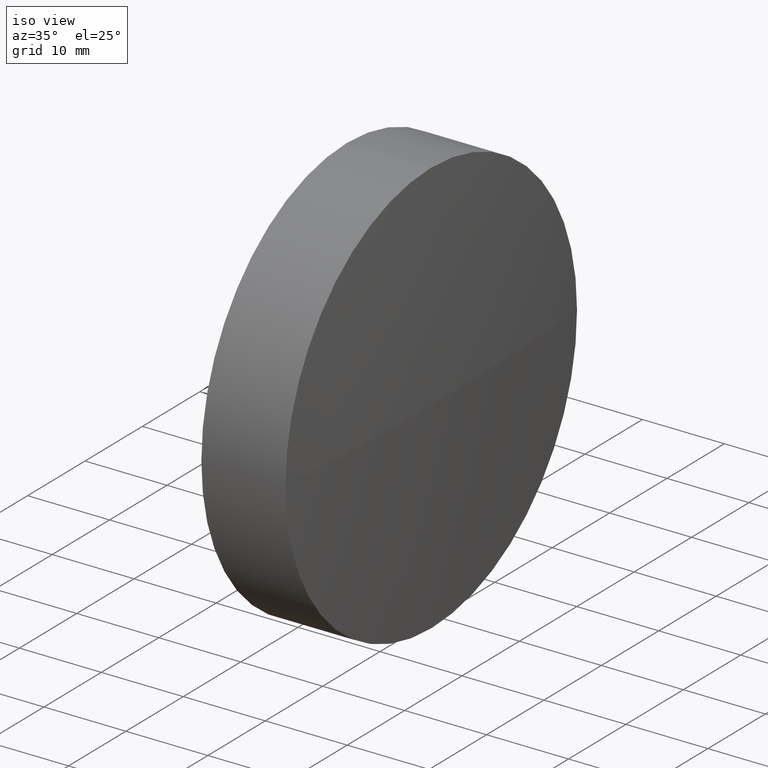
[diagram: clean part render]
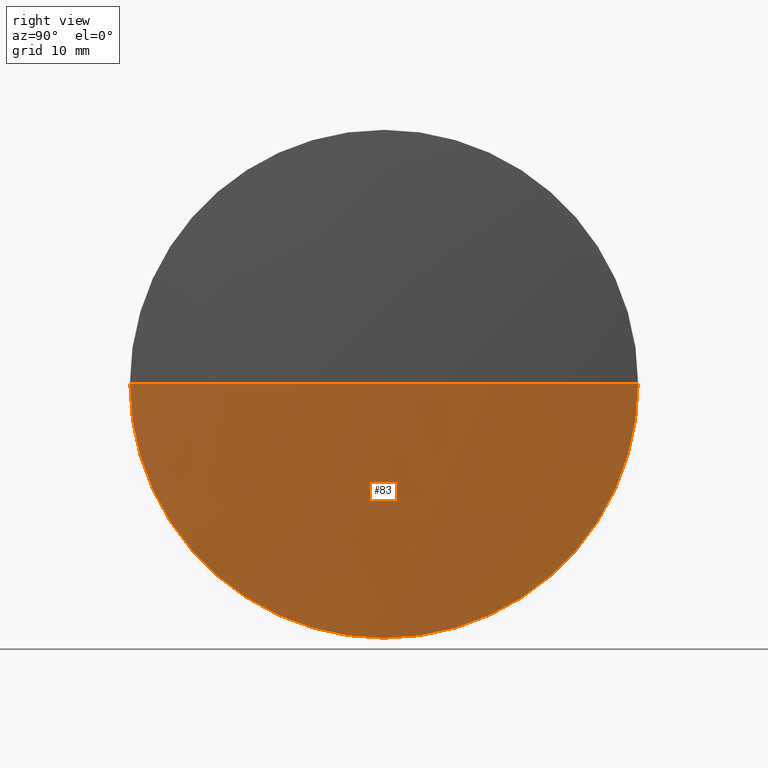
[diagram: tour spotlight — one face highlighted and labeled with its STEP entity id]
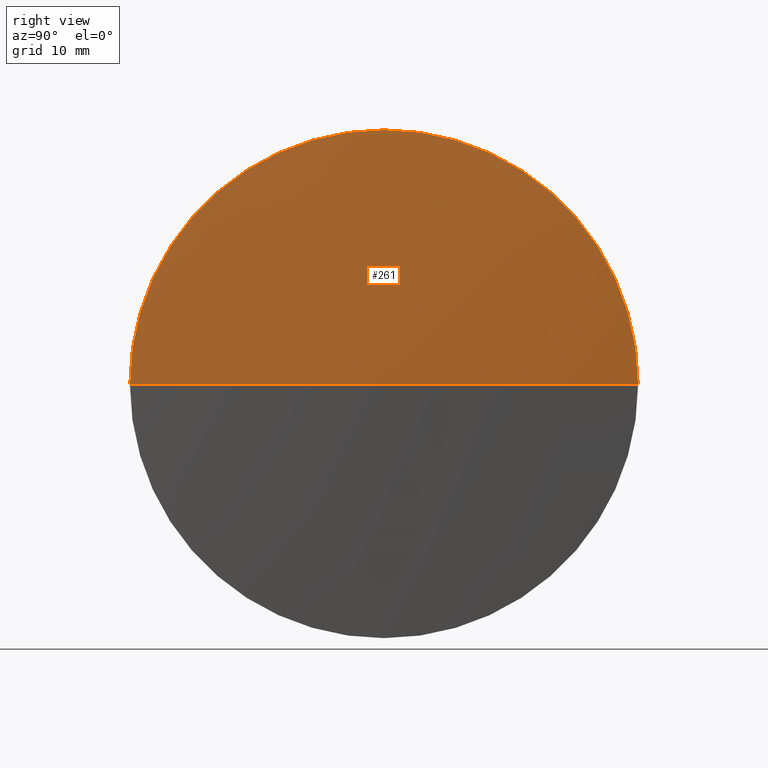
[diagram: tour spotlight — one face highlighted and labeled with its STEP entity id]
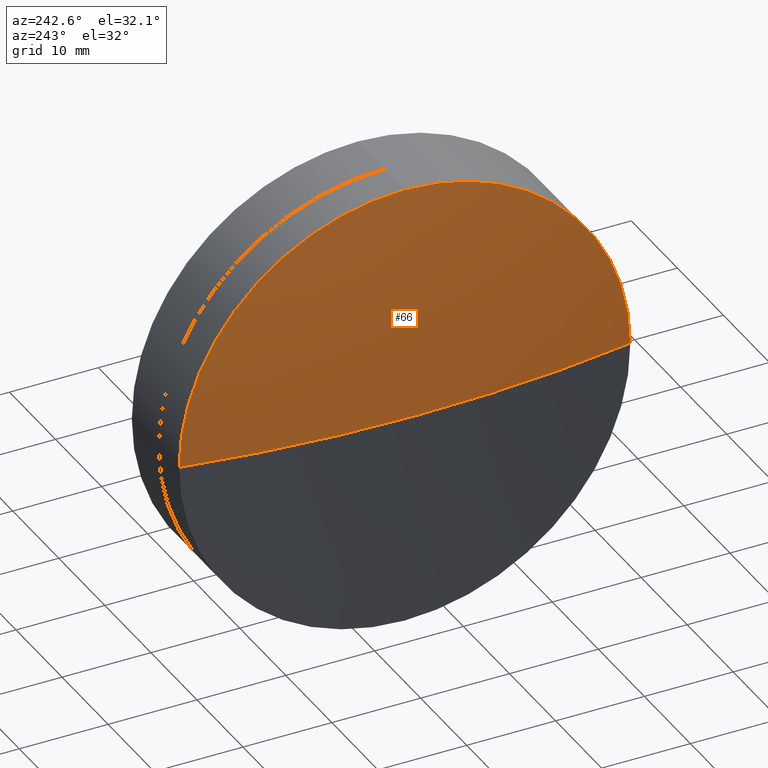
[diagram: tour spotlight — one face highlighted and labeled with its STEP entity id]
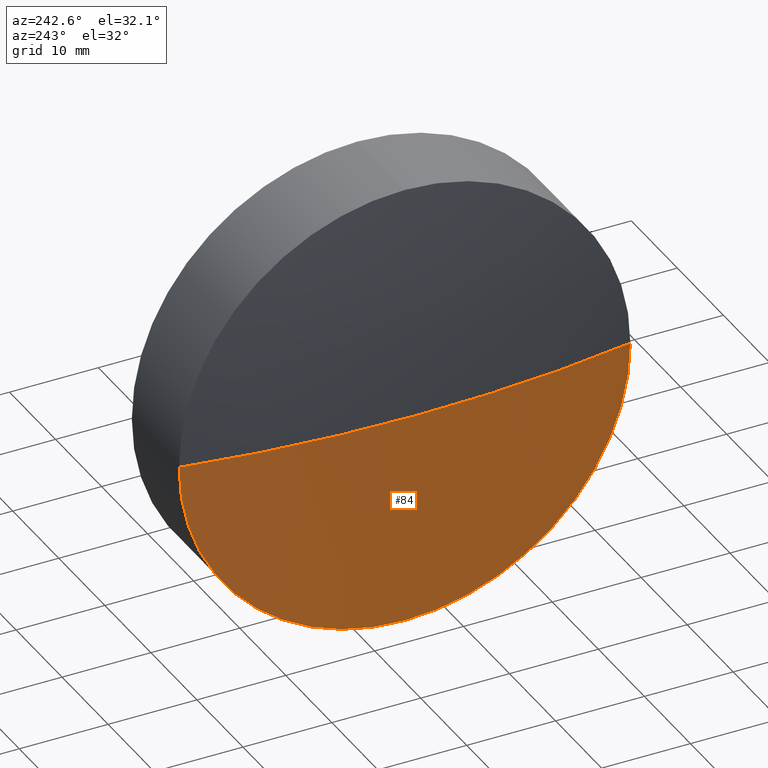
[diagram: tour spotlight — one face highlighted and labeled with its STEP entity id]
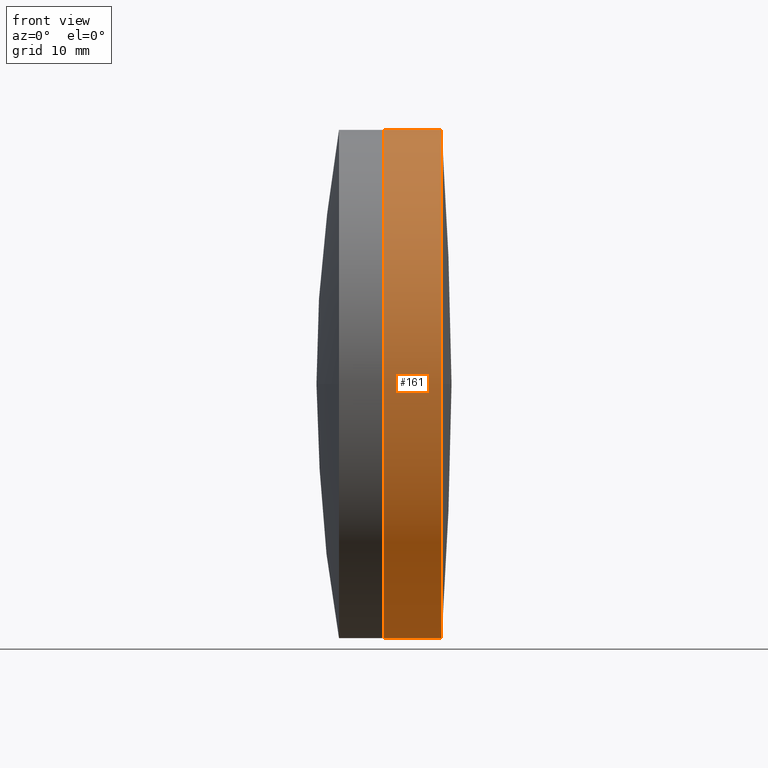
[diagram: tour spotlight — one face highlighted and labeled with its STEP entity id]
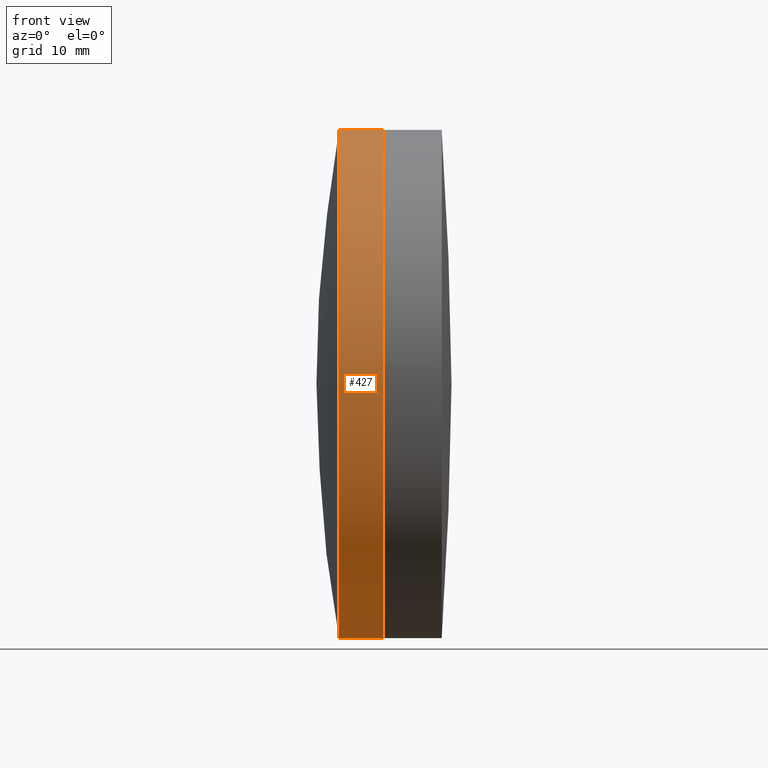
[diagram: tour spotlight — one face highlighted and labeled with its STEP entity id]
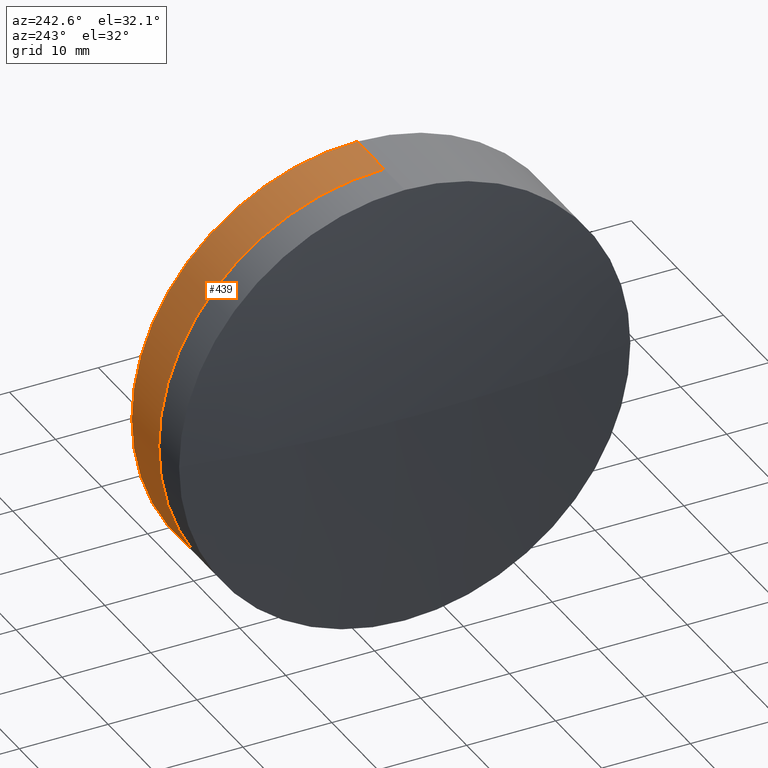
[diagram: tour spotlight — one face highlighted and labeled with its STEP entity id]
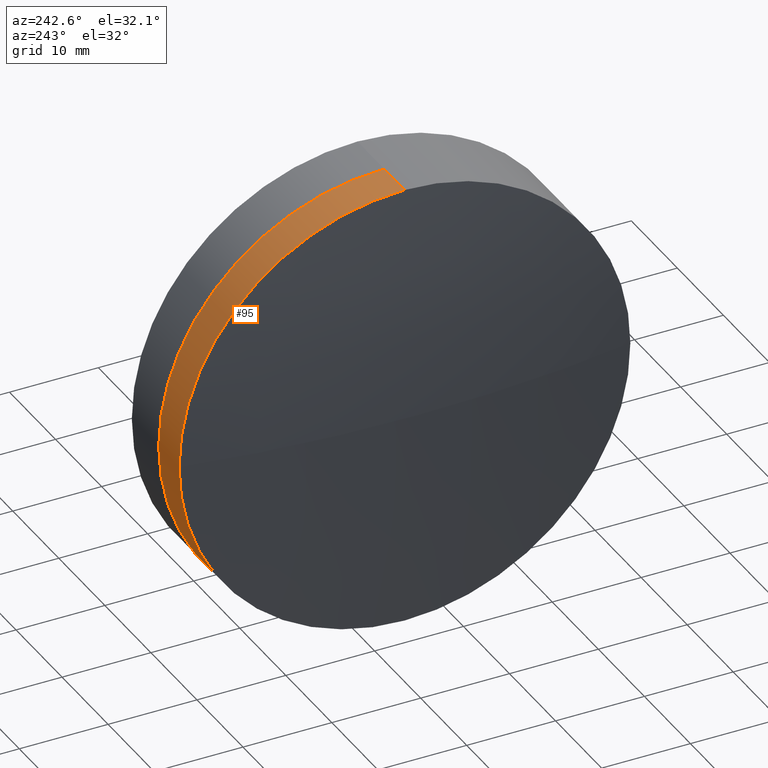
[diagram: tour spotlight — one face highlighted and labeled with its STEP entity id]
A machine part: a face-by-face anatomy tour. The part has 12 B-rep faces; the first image is the clean iso view, then the 8 largest visible faces are spotlighted one at a time (largest first), each with its STEP entity span.

Face 1 — right view, entity #83. In plain terms, the highlighted spherical surface has radius 328.2 mm.
Definition (entity closure, byte-faithful):
#6 = VERTEX_POINT ( 'NONE', #61 ) ;
#9 = DIRECTION ( 'NONE',  ( 0.000000000000000000, 1.224646799147353207E-16, -1.000000000000000000 ) ) ;
#26 = AXIS2_PLACEMENT_3D ( 'NONE', #45, #85, #42 ) ;
#27 = DIRECTION ( 'NONE',  ( -1.000000000000000000, -0.000000000000000000, -0.000000000000000000 ) ) ;
#30 = DIRECTION ( 'NONE',  ( 1.000000000000000000, 0.000000000000000000, 0.000000000000000000 ) ) ;
#40 = VERTEX_POINT ( 'NONE', #179 ) ;
#42 = DIRECTION ( 'NONE',  ( 0.000000000000000000, 1.000000000000000000, 0.000000000000000000 ) ) ;
#45 = CARTESIAN_POINT ( 'NONE',  ( -394.8209020964605429, 25.50979534552412531, 0.000000000000000000 ) ) ;
#47 = CIRCLE ( 'NONE', #288, 25.39999999999999858 ) ;
#51 = SPHERICAL_SURFACE ( 'NONE', #26, 328.1999999999999886 ) ;
#58 = EDGE_CURVE ( 'NONE', #40, #6, #373, .T. ) ;
#61 = CARTESIAN_POINT ( 'NONE',  ( -67.60525454885318197, 0.1097953455242040716, -3.110602869834267399E-15 ) ) ;
#71 = DIRECTION ( 'NONE',  ( 0.000000000000000000, 0.000000000000000000, 1.000000000000000000 ) ) ;
#83 = ADVANCED_FACE ( 'NONE', ( #141 ), #51, .T. ) ;
#85 = DIRECTION ( 'NONE',  ( -0.000000000000000000, 0.000000000000000000, -1.000000000000000000 ) ) ;
#100 = ORIENTED_EDGE ( 'NONE', *, *, #357, .F. ) ;
#136 = CARTESIAN_POINT ( 'NONE',  ( -67.60525454885318197, 25.50979534552412531, 0.000000000000000000 ) ) ;
#141 = FACE_OUTER_BOUND ( 'NONE', #406, .T. ) ;
#146 = EDGE_CURVE ( 'NONE', #419, #6, #47, .T. ) ;
#172 = CARTESIAN_POINT ( 'NONE',  ( -67.60525454885318197, 25.50979534552412886, -25.39999999999999858 ) ) ;
#179 = CARTESIAN_POINT ( 'NONE',  ( -66.62090209646054006, 25.50979534552414663, 0.000000000000000000 ) ) ;
#200 = DIRECTION ( 'NONE',  ( -1.000000000000000000, -0.000000000000000000, -0.000000000000000000 ) ) ;
#206 = ORIENTED_EDGE ( 'NONE', *, *, #298, .F. ) ;
#208 = CIRCLE ( 'NONE', #407, 25.39999999999999858 ) ;
#223 = CARTESIAN_POINT ( 'NONE',  ( -394.8209020964605429, 25.50979534552412531, 0.000000000000000000 ) ) ;
#230 = VERTEX_POINT ( 'NONE', #369 ) ;
#248 = CARTESIAN_POINT ( 'NONE',  ( -67.60525454885318197, 25.50979534552412531, 0.000000000000000000 ) ) ;
#288 = AXIS2_PLACEMENT_3D ( 'NONE', #248, #27, #403 ) ;
#298 = EDGE_CURVE ( 'NONE', #40, #230, #322, .T. ) ;
#322 = CIRCLE ( 'NONE', #366, 328.1999999999999886 ) ;
#329 = DIRECTION ( 'NONE',  ( -0.000000000000000000, 0.000000000000000000, 1.000000000000000000 ) ) ;
#331 = CARTESIAN_POINT ( 'NONE',  ( -394.8209020964605429, 25.50979534552412531, 0.000000000000000000 ) ) ;
#344 = ORIENTED_EDGE ( 'NONE', *, *, #58, .T. ) ;
#352 = DIRECTION ( 'NONE',  ( 0.000000000000000000, 1.000000000000000000, 1.224646799147353207E-16 ) ) ;
#354 = AXIS2_PLACEMENT_3D ( 'NONE', #223, #9, #352 ) ;
#357 = EDGE_CURVE ( 'NONE', #230, #419, #208, .T. ) ;
#366 = AXIS2_PLACEMENT_3D ( 'NONE', #331, #329, #30 ) ;
#369 = CARTESIAN_POINT ( 'NONE',  ( -67.60525454885318197, 50.90979534552404573, 0.000000000000000000 ) ) ;
#373 = CIRCLE ( 'NONE', #354, 328.1999999999999886 ) ;
#403 = DIRECTION ( 'NONE',  ( 0.000000000000000000, 0.000000000000000000, 1.000000000000000000 ) ) ;
#406 = EDGE_LOOP ( 'NONE', ( #206, #344, #409, #100 ) ) ;
#407 = AXIS2_PLACEMENT_3D ( 'NONE', #136, #200, #71 ) ;
#409 = ORIENTED_EDGE ( 'NONE', *, *, #146, .F. ) ;
#419 = VERTEX_POINT ( 'NONE', #172 ) ;

Face 2 — right view, entity #261. In plain terms, the highlighted spherical surface has radius 328.2 mm.
Definition (entity closure, byte-faithful):
#2 = CARTESIAN_POINT ( 'NONE',  ( -67.60525454885318197, 25.50979534552412531, 25.39999999999999858 ) ) ;
#4 = VERTEX_POINT ( 'NONE', #2 ) ;
#5 = DIRECTION ( 'NONE',  ( -1.000000000000000000, -0.000000000000000000, -0.000000000000000000 ) ) ;
#6 = VERTEX_POINT ( 'NONE', #61 ) ;
#9 = DIRECTION ( 'NONE',  ( 0.000000000000000000, 1.224646799147353207E-16, -1.000000000000000000 ) ) ;
#22 = CIRCLE ( 'NONE', #73, 25.39999999999999858 ) ;
#30 = DIRECTION ( 'NONE',  ( 1.000000000000000000, 0.000000000000000000, 0.000000000000000000 ) ) ;
#31 = ORIENTED_EDGE ( 'NONE', *, *, #382, .F. ) ;
#40 = VERTEX_POINT ( 'NONE', #179 ) ;
#56 = CARTESIAN_POINT ( 'NONE',  ( -67.60525454885318197, 25.50979534552412531, 0.000000000000000000 ) ) ;
#57 = ORIENTED_EDGE ( 'NONE', *, *, #212, .F. ) ;
#58 = EDGE_CURVE ( 'NONE', #40, #6, #373, .T. ) ;
#61 = CARTESIAN_POINT ( 'NONE',  ( -67.60525454885318197, 0.1097953455242040716, -3.110602869834267399E-15 ) ) ;
#73 = AXIS2_PLACEMENT_3D ( 'NONE', #310, #5, #423 ) ;
#92 = CARTESIAN_POINT ( 'NONE',  ( -394.8209020964605429, 25.50979534552412531, 0.000000000000000000 ) ) ;
#119 = DIRECTION ( 'NONE',  ( 0.000000000000000000, 1.000000000000000000, 0.000000000000000000 ) ) ;
#120 = DIRECTION ( 'NONE',  ( -0.000000000000000000, 0.000000000000000000, -1.000000000000000000 ) ) ;
#179 = CARTESIAN_POINT ( 'NONE',  ( -66.62090209646054006, 25.50979534552414663, 0.000000000000000000 ) ) ;
#185 = AXIS2_PLACEMENT_3D ( 'NONE', #92, #120, #119 ) ;
#196 = EDGE_LOOP ( 'NONE', ( #279, #332, #31, #57 ) ) ;
#212 = EDGE_CURVE ( 'NONE', #6, #4, #244, .T. ) ;
#214 = AXIS2_PLACEMENT_3D ( 'NONE', #56, #408, #326 ) ;
#223 = CARTESIAN_POINT ( 'NONE',  ( -394.8209020964605429, 25.50979534552412531, 0.000000000000000000 ) ) ;
#230 = VERTEX_POINT ( 'NONE', #369 ) ;
#234 = FACE_OUTER_BOUND ( 'NONE', #196, .T. ) ;
#244 = CIRCLE ( 'NONE', #214, 25.39999999999999858 ) ;
#261 = ADVANCED_FACE ( 'NONE', ( #234 ), #442, .T. ) ;
#279 = ORIENTED_EDGE ( 'NONE', *, *, #58, .F. ) ;
#298 = EDGE_CURVE ( 'NONE', #40, #230, #322, .T. ) ;
#310 = CARTESIAN_POINT ( 'NONE',  ( -67.60525454885318197, 25.50979534552412531, 0.000000000000000000 ) ) ;
#322 = CIRCLE ( 'NONE', #366, 328.1999999999999886 ) ;
#326 = DIRECTION ( 'NONE',  ( 0.000000000000000000, 0.000000000000000000, 1.000000000000000000 ) ) ;
#329 = DIRECTION ( 'NONE',  ( -0.000000000000000000, 0.000000000000000000, 1.000000000000000000 ) ) ;
#331 = CARTESIAN_POINT ( 'NONE',  ( -394.8209020964605429, 25.50979534552412531, 0.000000000000000000 ) ) ;
#332 = ORIENTED_EDGE ( 'NONE', *, *, #298, .T. ) ;
#352 = DIRECTION ( 'NONE',  ( 0.000000000000000000, 1.000000000000000000, 1.224646799147353207E-16 ) ) ;
#354 = AXIS2_PLACEMENT_3D ( 'NONE', #223, #9, #352 ) ;
#366 = AXIS2_PLACEMENT_3D ( 'NONE', #331, #329, #30 ) ;
#369 = CARTESIAN_POINT ( 'NONE',  ( -67.60525454885318197, 50.90979534552404573, 0.000000000000000000 ) ) ;
#373 = CIRCLE ( 'NONE', #354, 328.1999999999999886 ) ;
#382 = EDGE_CURVE ( 'NONE', #4, #230, #22, .T. ) ;
#408 = DIRECTION ( 'NONE',  ( -1.000000000000000000, -0.000000000000000000, -0.000000000000000000 ) ) ;
#423 = DIRECTION ( 'NONE',  ( 0.000000000000000000, 0.000000000000000000, 1.000000000000000000 ) ) ;
#442 = SPHERICAL_SURFACE ( 'NONE', #185, 328.1999999999999886 ) ;

Face 3 — auxiliary view, entity #66. In plain terms, the highlighted spherical surface has radius 144.4 mm.
Definition (entity closure, byte-faithful):
#11 = FACE_OUTER_BOUND ( 'NONE', #240, .T. ) ;
#53 = CARTESIAN_POINT ( 'NONE',  ( -77.86941598246637852, 25.50979534552412531, 0.000000000000000000 ) ) ;
#66 = ADVANCED_FACE ( 'NONE', ( #11 ), #176, .T. ) ;
#69 = ORIENTED_EDGE ( 'NONE', *, *, #103, .T. ) ;
#70 = ORIENTED_EDGE ( 'NONE', *, *, #177, .T. ) ;
#72 = CIRCLE ( 'NONE', #335, 25.39999999999999858 ) ;
#76 = CARTESIAN_POINT ( 'NONE',  ( -77.86941598246637852, 25.50979534552412531, 25.39999999999999858 ) ) ;
#89 = CIRCLE ( 'NONE', #205, 25.39999999999999858 ) ;
#97 = CIRCLE ( 'NONE', #272, 144.4000000000000057 ) ;
#98 = CARTESIAN_POINT ( 'NONE',  ( -77.86941598246637852, 0.1097953455241364173, -3.110602869834276076E-15 ) ) ;
#102 = VERTEX_POINT ( 'NONE', #76 ) ;
#103 = EDGE_CURVE ( 'NONE', #277, #341, #97, .T. ) ;
#114 = DIRECTION ( 'NONE',  ( 1.000000000000000000, 0.000000000000000000, 0.000000000000000000 ) ) ;
#122 = DIRECTION ( 'NONE',  ( 0.000000000000000000, 1.000000000000000000, 1.224646799147353207E-16 ) ) ;
#142 = AXIS2_PLACEMENT_3D ( 'NONE', #438, #263, #122 ) ;
#147 = CARTESIAN_POINT ( 'NONE',  ( 64.27909790353947983, 25.50979534552412531, 0.000000000000000000 ) ) ;
#168 = AXIS2_PLACEMENT_3D ( 'NONE', #147, #347, #319 ) ;
#170 = ORIENTED_EDGE ( 'NONE', *, *, #181, .T. ) ;
#173 = DIRECTION ( 'NONE',  ( -0.000000000000000000, 0.000000000000000000, 1.000000000000000000 ) ) ;
#176 = SPHERICAL_SURFACE ( 'NONE', #168, 144.4000000000000057 ) ;
#177 = EDGE_CURVE ( 'NONE', #102, #277, #89, .T. ) ;
#181 = EDGE_CURVE ( 'NONE', #334, #102, #72, .T. ) ;
#193 = CARTESIAN_POINT ( 'NONE',  ( -77.86941598246637852, 25.50979534552412531, 0.000000000000000000 ) ) ;
#202 = ORIENTED_EDGE ( 'NONE', *, *, #225, .F. ) ;
#205 = AXIS2_PLACEMENT_3D ( 'NONE', #193, #299, #231 ) ;
#225 = EDGE_CURVE ( 'NONE', #334, #341, #362, .T. ) ;
#229 = CARTESIAN_POINT ( 'NONE',  ( -77.86941598246637852, 50.90979534552411678, 0.000000000000000000 ) ) ;
#231 = DIRECTION ( 'NONE',  ( 0.000000000000000000, 0.000000000000000000, 1.000000000000000000 ) ) ;
#240 = EDGE_LOOP ( 'NONE', ( #202, #170, #70, #69 ) ) ;
#263 = DIRECTION ( 'NONE',  ( 0.000000000000000000, 1.224646799147353207E-16, -1.000000000000000000 ) ) ;
#267 = DIRECTION ( 'NONE',  ( -1.000000000000000000, -0.000000000000000000, -0.000000000000000000 ) ) ;
#272 = AXIS2_PLACEMENT_3D ( 'NONE', #363, #173, #114 ) ;
#277 = VERTEX_POINT ( 'NONE', #229 ) ;
#294 = DIRECTION ( 'NONE',  ( 0.000000000000000000, 0.000000000000000000, 1.000000000000000000 ) ) ;
#299 = DIRECTION ( 'NONE',  ( -1.000000000000000000, -0.000000000000000000, -0.000000000000000000 ) ) ;
#319 = DIRECTION ( 'NONE',  ( 0.000000000000000000, 1.000000000000000000, 0.000000000000000000 ) ) ;
#334 = VERTEX_POINT ( 'NONE', #98 ) ;
#335 = AXIS2_PLACEMENT_3D ( 'NONE', #53, #267, #294 ) ;
#340 = CARTESIAN_POINT ( 'NONE',  ( -80.12090209646052585, 25.50979534552413597, 0.000000000000000000 ) ) ;
#341 = VERTEX_POINT ( 'NONE', #340 ) ;
#347 = DIRECTION ( 'NONE',  ( -0.000000000000000000, 0.000000000000000000, -1.000000000000000000 ) ) ;
#362 = CIRCLE ( 'NONE', #142, 144.4000000000000341 ) ;
#363 = CARTESIAN_POINT ( 'NONE',  ( 64.27909790353947983, 25.50979534552412531, 0.000000000000000000 ) ) ;
#438 = CARTESIAN_POINT ( 'NONE',  ( 64.27909790353947983, 25.50979534552412531, 0.000000000000000000 ) ) ;

Face 4 — auxiliary view, entity #84. In plain terms, the highlighted spherical surface has radius 144.4 mm.
Definition (entity closure, byte-faithful):
#60 = ORIENTED_EDGE ( 'NONE', *, *, #103, .F. ) ;
#84 = ADVANCED_FACE ( 'NONE', ( #144 ), #115, .T. ) ;
#90 = CIRCLE ( 'NONE', #374, 25.39999999999999858 ) ;
#97 = CIRCLE ( 'NONE', #272, 144.4000000000000057 ) ;
#98 = CARTESIAN_POINT ( 'NONE',  ( -77.86941598246637852, 0.1097953455241364173, -3.110602869834276076E-15 ) ) ;
#103 = EDGE_CURVE ( 'NONE', #277, #341, #97, .T. ) ;
#104 = ORIENTED_EDGE ( 'NONE', *, *, #305, .T. ) ;
#110 = AXIS2_PLACEMENT_3D ( 'NONE', #410, #302, #189 ) ;
#114 = DIRECTION ( 'NONE',  ( 1.000000000000000000, 0.000000000000000000, 0.000000000000000000 ) ) ;
#115 = SPHERICAL_SURFACE ( 'NONE', #443, 144.4000000000000057 ) ;
#122 = DIRECTION ( 'NONE',  ( 0.000000000000000000, 1.000000000000000000, 1.224646799147353207E-16 ) ) ;
#125 = EDGE_LOOP ( 'NONE', ( #330, #104, #280, #60 ) ) ;
#142 = AXIS2_PLACEMENT_3D ( 'NONE', #438, #263, #122 ) ;
#144 = FACE_OUTER_BOUND ( 'NONE', #125, .T. ) ;
#173 = DIRECTION ( 'NONE',  ( -0.000000000000000000, 0.000000000000000000, 1.000000000000000000 ) ) ;
#188 = CARTESIAN_POINT ( 'NONE',  ( 64.27909790353947983, 25.50979534552412531, 0.000000000000000000 ) ) ;
#189 = DIRECTION ( 'NONE',  ( 0.000000000000000000, 0.000000000000000000, 1.000000000000000000 ) ) ;
#203 = CARTESIAN_POINT ( 'NONE',  ( -77.86941598246637852, 25.50979534552412886, -25.39999999999999858 ) ) ;
#219 = EDGE_CURVE ( 'NONE', #277, #368, #301, .T. ) ;
#225 = EDGE_CURVE ( 'NONE', #334, #341, #362, .T. ) ;
#229 = CARTESIAN_POINT ( 'NONE',  ( -77.86941598246637852, 50.90979534552411678, 0.000000000000000000 ) ) ;
#247 = DIRECTION ( 'NONE',  ( 0.000000000000000000, 1.000000000000000000, 0.000000000000000000 ) ) ;
#263 = DIRECTION ( 'NONE',  ( 0.000000000000000000, 1.224646799147353207E-16, -1.000000000000000000 ) ) ;
#271 = DIRECTION ( 'NONE',  ( 0.000000000000000000, 0.000000000000000000, 1.000000000000000000 ) ) ;
#272 = AXIS2_PLACEMENT_3D ( 'NONE', #363, #173, #114 ) ;
#277 = VERTEX_POINT ( 'NONE', #229 ) ;
#280 = ORIENTED_EDGE ( 'NONE', *, *, #225, .T. ) ;
#301 = CIRCLE ( 'NONE', #110, 25.39999999999999858 ) ;
#302 = DIRECTION ( 'NONE',  ( -1.000000000000000000, -0.000000000000000000, -0.000000000000000000 ) ) ;
#305 = EDGE_CURVE ( 'NONE', #368, #334, #90, .T. ) ;
#317 = DIRECTION ( 'NONE',  ( -0.000000000000000000, 0.000000000000000000, -1.000000000000000000 ) ) ;
#330 = ORIENTED_EDGE ( 'NONE', *, *, #219, .T. ) ;
#334 = VERTEX_POINT ( 'NONE', #98 ) ;
#340 = CARTESIAN_POINT ( 'NONE',  ( -80.12090209646052585, 25.50979534552413597, 0.000000000000000000 ) ) ;
#341 = VERTEX_POINT ( 'NONE', #340 ) ;
#362 = CIRCLE ( 'NONE', #142, 144.4000000000000341 ) ;
#363 = CARTESIAN_POINT ( 'NONE',  ( 64.27909790353947983, 25.50979534552412531, 0.000000000000000000 ) ) ;
#368 = VERTEX_POINT ( 'NONE', #203 ) ;
#374 = AXIS2_PLACEMENT_3D ( 'NONE', #411, #381, #271 ) ;
#381 = DIRECTION ( 'NONE',  ( -1.000000000000000000, -0.000000000000000000, -0.000000000000000000 ) ) ;
#410 = CARTESIAN_POINT ( 'NONE',  ( -77.86941598246637852, 25.50979534552412531, 0.000000000000000000 ) ) ;
#411 = CARTESIAN_POINT ( 'NONE',  ( -77.86941598246637852, 25.50979534552412531, 0.000000000000000000 ) ) ;
#438 = CARTESIAN_POINT ( 'NONE',  ( 64.27909790353947983, 25.50979534552412531, 0.000000000000000000 ) ) ;
#443 = AXIS2_PLACEMENT_3D ( 'NONE', #188, #317, #247 ) ;

Face 5 — front view, entity #161. In plain terms, the highlighted cylindrical surface (partial cylindrical patch) has radius 25.4 mm, axis along (-1, -0, -0).
Definition (entity closure, byte-faithful):
#1 = DIRECTION ( 'NONE',  ( 0.000000000000000000, 0.000000000000000000, 1.000000000000000000 ) ) ;
#2 = CARTESIAN_POINT ( 'NONE',  ( -67.60525454885318197, 25.50979534552412531, 25.39999999999999858 ) ) ;
#4 = VERTEX_POINT ( 'NONE', #2 ) ;
#6 = VERTEX_POINT ( 'NONE', #61 ) ;
#7 = ORIENTED_EDGE ( 'NONE', *, *, #152, .T. ) ;
#10 = VERTEX_POINT ( 'NONE', #96 ) ;
#14 = AXIS2_PLACEMENT_3D ( 'NONE', #336, #101, #1 ) ;
#19 = EDGE_CURVE ( 'NONE', #245, #237, #405, .T. ) ;
#25 = DIRECTION ( 'NONE',  ( -1.000000000000000000, -0.000000000000000000, -0.000000000000000000 ) ) ;
#27 = DIRECTION ( 'NONE',  ( -1.000000000000000000, -0.000000000000000000, -0.000000000000000000 ) ) ;
#32 = FACE_OUTER_BOUND ( 'NONE', #370, .T. ) ;
#47 = CIRCLE ( 'NONE', #288, 25.39999999999999858 ) ;
#54 = CYLINDRICAL_SURFACE ( 'NONE', #82, 25.39999999999999858 ) ;
#56 = CARTESIAN_POINT ( 'NONE',  ( -67.60525454885318197, 25.50979534552412531, 0.000000000000000000 ) ) ;
#59 = CARTESIAN_POINT ( 'NONE',  ( -73.45092386069826773, 25.50979534552412886, -25.39999999999999858 ) ) ;
#61 = CARTESIAN_POINT ( 'NONE',  ( -67.60525454885318197, 0.1097953455242040716, -3.110602869834267399E-15 ) ) ;
#82 = AXIS2_PLACEMENT_3D ( 'NONE', #440, #25, #333 ) ;
#88 = LINE ( 'NONE', #192, #153 ) ;
#94 = CARTESIAN_POINT ( 'NONE',  ( -70.62090209646055428, 25.50979534552412531, 25.39999999999999858 ) ) ;
#96 = CARTESIAN_POINT ( 'NONE',  ( -73.45092386069826773, 25.50979534552412531, 25.39999999999999858 ) ) ;
#101 = DIRECTION ( 'NONE',  ( -1.000000000000000000, -0.000000000000000000, -0.000000000000000000 ) ) ;
#106 = ORIENTED_EDGE ( 'NONE', *, *, #129, .F. ) ;
#126 = CARTESIAN_POINT ( 'NONE',  ( -73.45092386069826773, 0.1097953455240670284, -3.110602869834283965E-15 ) ) ;
#129 = EDGE_CURVE ( 'NONE', #237, #10, #282, .T. ) ;
#146 = EDGE_CURVE ( 'NONE', #419, #6, #47, .T. ) ;
#152 = EDGE_CURVE ( 'NONE', #4, #10, #195, .T. ) ;
#153 = VECTOR ( 'NONE', #158, 1000.000000000000000 ) ;
#158 = DIRECTION ( 'NONE',  ( -1.000000000000000000, -0.000000000000000000, -0.000000000000000000 ) ) ;
#161 = ADVANCED_FACE ( 'NONE', ( #32 ), #54, .T. ) ;
#172 = CARTESIAN_POINT ( 'NONE',  ( -67.60525454885318197, 25.50979534552412886, -25.39999999999999858 ) ) ;
#186 = EDGE_CURVE ( 'NONE', #419, #245, #88, .T. ) ;
#192 = CARTESIAN_POINT ( 'NONE',  ( -70.62090209646055428, 25.50979534552412886, -25.39999999999999858 ) ) ;
#195 = LINE ( 'NONE', #94, #258 ) ;
#212 = EDGE_CURVE ( 'NONE', #6, #4, #244, .T. ) ;
#214 = AXIS2_PLACEMENT_3D ( 'NONE', #56, #408, #326 ) ;
#232 = ORIENTED_EDGE ( 'NONE', *, *, #146, .T. ) ;
#235 = AXIS2_PLACEMENT_3D ( 'NONE', #399, #386, #249 ) ;
#237 = VERTEX_POINT ( 'NONE', #126 ) ;
#244 = CIRCLE ( 'NONE', #214, 25.39999999999999858 ) ;
#245 = VERTEX_POINT ( 'NONE', #59 ) ;
#248 = CARTESIAN_POINT ( 'NONE',  ( -67.60525454885318197, 25.50979534552412531, 0.000000000000000000 ) ) ;
#249 = DIRECTION ( 'NONE',  ( 0.000000000000000000, 0.000000000000000000, 1.000000000000000000 ) ) ;
#258 = VECTOR ( 'NONE', #404, 1000.000000000000000 ) ;
#282 = CIRCLE ( 'NONE', #235, 25.39999999999999858 ) ;
#288 = AXIS2_PLACEMENT_3D ( 'NONE', #248, #27, #403 ) ;
#311 = ORIENTED_EDGE ( 'NONE', *, *, #186, .F. ) ;
#326 = DIRECTION ( 'NONE',  ( 0.000000000000000000, 0.000000000000000000, 1.000000000000000000 ) ) ;
#333 = DIRECTION ( 'NONE',  ( 0.000000000000000000, 0.000000000000000000, 1.000000000000000000 ) ) ;
#336 = CARTESIAN_POINT ( 'NONE',  ( -73.45092386069826773, 25.50979534552412531, 0.000000000000000000 ) ) ;
#370 = EDGE_LOOP ( 'NONE', ( #311, #232, #372, #7, #106, #422 ) ) ;
#372 = ORIENTED_EDGE ( 'NONE', *, *, #212, .T. ) ;
#386 = DIRECTION ( 'NONE',  ( -1.000000000000000000, -0.000000000000000000, -0.000000000000000000 ) ) ;
#399 = CARTESIAN_POINT ( 'NONE',  ( -73.45092386069826773, 25.50979534552412531, 0.000000000000000000 ) ) ;
#403 = DIRECTION ( 'NONE',  ( 0.000000000000000000, 0.000000000000000000, 1.000000000000000000 ) ) ;
#404 = DIRECTION ( 'NONE',  ( -1.000000000000000000, -0.000000000000000000, -0.000000000000000000 ) ) ;
#405 = CIRCLE ( 'NONE', #14, 25.39999999999999858 ) ;
#408 = DIRECTION ( 'NONE',  ( -1.000000000000000000, -0.000000000000000000, -0.000000000000000000 ) ) ;
#419 = VERTEX_POINT ( 'NONE', #172 ) ;
#422 = ORIENTED_EDGE ( 'NONE', *, *, #19, .F. ) ;
#440 = CARTESIAN_POINT ( 'NONE',  ( -70.62090209646055428, 25.50979534552412531, 0.000000000000000000 ) ) ;

Face 6 — front view, entity #427. In plain terms, the highlighted cylindrical surface (partial cylindrical patch) has radius 25.4 mm, axis along (-1, -0, -0).
Definition (entity closure, byte-faithful):
#8 = CARTESIAN_POINT ( 'NONE',  ( -80.12090209646052585, 25.50979534552412531, 0.000000000000000000 ) ) ;
#12 = EDGE_CURVE ( 'NONE', #312, #102, #132, .T. ) ;
#28 = ORIENTED_EDGE ( 'NONE', *, *, #12, .T. ) ;
#35 = CARTESIAN_POINT ( 'NONE',  ( -73.45092386069823931, 25.50979534552412531, 25.39999999999999858 ) ) ;
#36 = VERTEX_POINT ( 'NONE', #286 ) ;
#39 = DIRECTION ( 'NONE',  ( 0.000000000000000000, 0.000000000000000000, 1.000000000000000000 ) ) ;
#41 = CARTESIAN_POINT ( 'NONE',  ( -73.45092386069823931, 25.50979534552412531, 0.000000000000000000 ) ) ;
#53 = CARTESIAN_POINT ( 'NONE',  ( -77.86941598246637852, 25.50979534552412531, 0.000000000000000000 ) ) ;
#68 = DIRECTION ( 'NONE',  ( -1.000000000000000000, -0.000000000000000000, -0.000000000000000000 ) ) ;
#72 = CIRCLE ( 'NONE', #335, 25.39999999999999858 ) ;
#76 = CARTESIAN_POINT ( 'NONE',  ( -77.86941598246637852, 25.50979534552412531, 25.39999999999999858 ) ) ;
#90 = CIRCLE ( 'NONE', #374, 25.39999999999999858 ) ;
#91 = EDGE_LOOP ( 'NONE', ( #274, #171, #137, #28, #308, #376 ) ) ;
#98 = CARTESIAN_POINT ( 'NONE',  ( -77.86941598246637852, 0.1097953455241364173, -3.110602869834276076E-15 ) ) ;
#102 = VERTEX_POINT ( 'NONE', #76 ) ;
#109 = EDGE_CURVE ( 'NONE', #36, #368, #424, .T. ) ;
#130 = CARTESIAN_POINT ( 'NONE',  ( -80.12090209646052585, 25.50979534552412531, 25.39999999999999858 ) ) ;
#131 = DIRECTION ( 'NONE',  ( 0.000000000000000000, 0.000000000000000000, 1.000000000000000000 ) ) ;
#132 = LINE ( 'NONE', #130, #383 ) ;
#137 = ORIENTED_EDGE ( 'NONE', *, *, #338, .T. ) ;
#163 = CARTESIAN_POINT ( 'NONE',  ( -73.45092386069823931, 25.50979534552412531, 0.000000000000000000 ) ) ;
#169 = DIRECTION ( 'NONE',  ( -1.000000000000000000, -0.000000000000000000, -0.000000000000000000 ) ) ;
#171 = ORIENTED_EDGE ( 'NONE', *, *, #388, .T. ) ;
#181 = EDGE_CURVE ( 'NONE', #334, #102, #72, .T. ) ;
#190 = VECTOR ( 'NONE', #325, 1000.000000000000000 ) ;
#203 = CARTESIAN_POINT ( 'NONE',  ( -77.86941598246637852, 25.50979534552412886, -25.39999999999999858 ) ) ;
#210 = CARTESIAN_POINT ( 'NONE',  ( -80.12090209646052585, 25.50979534552412886, -25.39999999999999858 ) ) ;
#222 = CIRCLE ( 'NONE', #355, 25.39999999999999858 ) ;
#242 = VERTEX_POINT ( 'NONE', #447 ) ;
#243 = DIRECTION ( 'NONE',  ( 0.000000000000000000, 0.000000000000000000, 1.000000000000000000 ) ) ;
#267 = DIRECTION ( 'NONE',  ( -1.000000000000000000, -0.000000000000000000, -0.000000000000000000 ) ) ;
#271 = DIRECTION ( 'NONE',  ( 0.000000000000000000, 0.000000000000000000, 1.000000000000000000 ) ) ;
#274 = ORIENTED_EDGE ( 'NONE', *, *, #109, .F. ) ;
#275 = DIRECTION ( 'NONE',  ( -1.000000000000000000, -0.000000000000000000, -0.000000000000000000 ) ) ;
#278 = CYLINDRICAL_SURFACE ( 'NONE', #444, 25.39999999999999858 ) ;
#286 = CARTESIAN_POINT ( 'NONE',  ( -73.45092386069823931, 25.50979534552412886, -25.39999999999999858 ) ) ;
#294 = DIRECTION ( 'NONE',  ( 0.000000000000000000, 0.000000000000000000, 1.000000000000000000 ) ) ;
#305 = EDGE_CURVE ( 'NONE', #368, #334, #90, .T. ) ;
#308 = ORIENTED_EDGE ( 'NONE', *, *, #181, .F. ) ;
#309 = AXIS2_PLACEMENT_3D ( 'NONE', #163, #68, #39 ) ;
#312 = VERTEX_POINT ( 'NONE', #35 ) ;
#313 = FACE_OUTER_BOUND ( 'NONE', #91, .T. ) ;
#325 = DIRECTION ( 'NONE',  ( -1.000000000000000000, -0.000000000000000000, -0.000000000000000000 ) ) ;
#334 = VERTEX_POINT ( 'NONE', #98 ) ;
#335 = AXIS2_PLACEMENT_3D ( 'NONE', #53, #267, #294 ) ;
#338 = EDGE_CURVE ( 'NONE', #242, #312, #222, .T. ) ;
#355 = AXIS2_PLACEMENT_3D ( 'NONE', #41, #169, #243 ) ;
#368 = VERTEX_POINT ( 'NONE', #203 ) ;
#374 = AXIS2_PLACEMENT_3D ( 'NONE', #411, #381, #271 ) ;
#376 = ORIENTED_EDGE ( 'NONE', *, *, #305, .F. ) ;
#381 = DIRECTION ( 'NONE',  ( -1.000000000000000000, -0.000000000000000000, -0.000000000000000000 ) ) ;
#383 = VECTOR ( 'NONE', #416, 1000.000000000000000 ) ;
#388 = EDGE_CURVE ( 'NONE', #36, #242, #433, .T. ) ;
#411 = CARTESIAN_POINT ( 'NONE',  ( -77.86941598246637852, 25.50979534552412531, 0.000000000000000000 ) ) ;
#416 = DIRECTION ( 'NONE',  ( -1.000000000000000000, -0.000000000000000000, -0.000000000000000000 ) ) ;
#424 = LINE ( 'NONE', #210, #190 ) ;
#427 = ADVANCED_FACE ( 'NONE', ( #313 ), #278, .T. ) ;
#433 = CIRCLE ( 'NONE', #309, 25.39999999999999858 ) ;
#444 = AXIS2_PLACEMENT_3D ( 'NONE', #8, #275, #131 ) ;
#447 = CARTESIAN_POINT ( 'NONE',  ( -73.45092386069823931, 0.1097953455241364173, -3.110602869834275682E-15 ) ) ;

Face 7 — auxiliary view, entity #439. In plain terms, the highlighted cylindrical surface (partial cylindrical patch) has radius 25.4 mm, axis along (-1, -0, -0).
Definition (entity closure, byte-faithful):
#2 = CARTESIAN_POINT ( 'NONE',  ( -67.60525454885318197, 25.50979534552412531, 25.39999999999999858 ) ) ;
#3 = AXIS2_PLACEMENT_3D ( 'NONE', #389, #215, #74 ) ;
#4 = VERTEX_POINT ( 'NONE', #2 ) ;
#5 = DIRECTION ( 'NONE',  ( -1.000000000000000000, -0.000000000000000000, -0.000000000000000000 ) ) ;
#10 = VERTEX_POINT ( 'NONE', #96 ) ;
#13 = EDGE_CURVE ( 'NONE', #297, #245, #123, .T. ) ;
#22 = CIRCLE ( 'NONE', #73, 25.39999999999999858 ) ;
#43 = ORIENTED_EDGE ( 'NONE', *, *, #13, .F. ) ;
#59 = CARTESIAN_POINT ( 'NONE',  ( -73.45092386069826773, 25.50979534552412886, -25.39999999999999858 ) ) ;
#71 = DIRECTION ( 'NONE',  ( 0.000000000000000000, 0.000000000000000000, 1.000000000000000000 ) ) ;
#73 = AXIS2_PLACEMENT_3D ( 'NONE', #310, #5, #423 ) ;
#74 = DIRECTION ( 'NONE',  ( 0.000000000000000000, 0.000000000000000000, 1.000000000000000000 ) ) ;
#88 = LINE ( 'NONE', #192, #153 ) ;
#94 = CARTESIAN_POINT ( 'NONE',  ( -70.62090209646055428, 25.50979534552412531, 25.39999999999999858 ) ) ;
#96 = CARTESIAN_POINT ( 'NONE',  ( -73.45092386069826773, 25.50979534552412531, 25.39999999999999858 ) ) ;
#123 = CIRCLE ( 'NONE', #183, 25.39999999999999858 ) ;
#134 = EDGE_CURVE ( 'NONE', #10, #297, #227, .T. ) ;
#136 = CARTESIAN_POINT ( 'NONE',  ( -67.60525454885318197, 25.50979534552412531, 0.000000000000000000 ) ) ;
#139 = ORIENTED_EDGE ( 'NONE', *, *, #382, .T. ) ;
#140 = FACE_OUTER_BOUND ( 'NONE', #445, .T. ) ;
#152 = EDGE_CURVE ( 'NONE', #4, #10, #195, .T. ) ;
#153 = VECTOR ( 'NONE', #158, 1000.000000000000000 ) ;
#157 = ORIENTED_EDGE ( 'NONE', *, *, #186, .T. ) ;
#158 = DIRECTION ( 'NONE',  ( -1.000000000000000000, -0.000000000000000000, -0.000000000000000000 ) ) ;
#162 = CARTESIAN_POINT ( 'NONE',  ( -73.45092386069826773, 25.50979534552412531, 0.000000000000000000 ) ) ;
#164 = ORIENTED_EDGE ( 'NONE', *, *, #152, .F. ) ;
#172 = CARTESIAN_POINT ( 'NONE',  ( -67.60525454885318197, 25.50979534552412886, -25.39999999999999858 ) ) ;
#183 = AXIS2_PLACEMENT_3D ( 'NONE', #162, #378, #199 ) ;
#186 = EDGE_CURVE ( 'NONE', #419, #245, #88, .T. ) ;
#192 = CARTESIAN_POINT ( 'NONE',  ( -70.62090209646055428, 25.50979534552412886, -25.39999999999999858 ) ) ;
#195 = LINE ( 'NONE', #94, #258 ) ;
#199 = DIRECTION ( 'NONE',  ( 0.000000000000000000, 0.000000000000000000, 1.000000000000000000 ) ) ;
#200 = DIRECTION ( 'NONE',  ( -1.000000000000000000, -0.000000000000000000, -0.000000000000000000 ) ) ;
#204 = ORIENTED_EDGE ( 'NONE', *, *, #357, .T. ) ;
#208 = CIRCLE ( 'NONE', #407, 25.39999999999999858 ) ;
#215 = DIRECTION ( 'NONE',  ( -1.000000000000000000, -0.000000000000000000, -0.000000000000000000 ) ) ;
#227 = CIRCLE ( 'NONE', #3, 25.39999999999999858 ) ;
#228 = AXIS2_PLACEMENT_3D ( 'NONE', #246, #417, #307 ) ;
#230 = VERTEX_POINT ( 'NONE', #369 ) ;
#245 = VERTEX_POINT ( 'NONE', #59 ) ;
#246 = CARTESIAN_POINT ( 'NONE',  ( -70.62090209646055428, 25.50979534552412531, 0.000000000000000000 ) ) ;
#258 = VECTOR ( 'NONE', #404, 1000.000000000000000 ) ;
#281 = CYLINDRICAL_SURFACE ( 'NONE', #228, 25.39999999999999858 ) ;
#297 = VERTEX_POINT ( 'NONE', #364 ) ;
#303 = ORIENTED_EDGE ( 'NONE', *, *, #134, .F. ) ;
#307 = DIRECTION ( 'NONE',  ( 0.000000000000000000, 0.000000000000000000, 1.000000000000000000 ) ) ;
#310 = CARTESIAN_POINT ( 'NONE',  ( -67.60525454885318197, 25.50979534552412531, 0.000000000000000000 ) ) ;
#357 = EDGE_CURVE ( 'NONE', #230, #419, #208, .T. ) ;
#364 = CARTESIAN_POINT ( 'NONE',  ( -73.45092386069826773, 50.90979534552418784, 0.000000000000000000 ) ) ;
#369 = CARTESIAN_POINT ( 'NONE',  ( -67.60525454885318197, 50.90979534552404573, 0.000000000000000000 ) ) ;
#378 = DIRECTION ( 'NONE',  ( -1.000000000000000000, -0.000000000000000000, -0.000000000000000000 ) ) ;
#382 = EDGE_CURVE ( 'NONE', #4, #230, #22, .T. ) ;
#389 = CARTESIAN_POINT ( 'NONE',  ( -73.45092386069826773, 25.50979534552412531, 0.000000000000000000 ) ) ;
#404 = DIRECTION ( 'NONE',  ( -1.000000000000000000, -0.000000000000000000, -0.000000000000000000 ) ) ;
#407 = AXIS2_PLACEMENT_3D ( 'NONE', #136, #200, #71 ) ;
#417 = DIRECTION ( 'NONE',  ( -1.000000000000000000, -0.000000000000000000, -0.000000000000000000 ) ) ;
#419 = VERTEX_POINT ( 'NONE', #172 ) ;
#423 = DIRECTION ( 'NONE',  ( 0.000000000000000000, 0.000000000000000000, 1.000000000000000000 ) ) ;
#439 = ADVANCED_FACE ( 'NONE', ( #140 ), #281, .T. ) ;
#445 = EDGE_LOOP ( 'NONE', ( #204, #157, #43, #303, #164, #139 ) ) ;

Face 8 — auxiliary view, entity #95. In plain terms, the highlighted cylindrical surface (partial cylindrical patch) has radius 25.4 mm, axis along (-1, -0, -0).
Definition (entity closure, byte-faithful):
#12 = EDGE_CURVE ( 'NONE', #312, #102, #132, .T. ) ;
#16 = DIRECTION ( 'NONE',  ( -1.000000000000000000, -0.000000000000000000, -0.000000000000000000 ) ) ;
#35 = CARTESIAN_POINT ( 'NONE',  ( -73.45092386069823931, 25.50979534552412531, 25.39999999999999858 ) ) ;
#36 = VERTEX_POINT ( 'NONE', #286 ) ;
#38 = ORIENTED_EDGE ( 'NONE', *, *, #219, .F. ) ;
#63 = AXIS2_PLACEMENT_3D ( 'NONE', #269, #365, #296 ) ;
#75 = CARTESIAN_POINT ( 'NONE',  ( -80.12090209646052585, 25.50979534552412531, 0.000000000000000000 ) ) ;
#76 = CARTESIAN_POINT ( 'NONE',  ( -77.86941598246637852, 25.50979534552412531, 25.39999999999999858 ) ) ;
#89 = CIRCLE ( 'NONE', #205, 25.39999999999999858 ) ;
#95 = ADVANCED_FACE ( 'NONE', ( #351 ), #429, .T. ) ;
#102 = VERTEX_POINT ( 'NONE', #76 ) ;
#109 = EDGE_CURVE ( 'NONE', #36, #368, #424, .T. ) ;
#110 = AXIS2_PLACEMENT_3D ( 'NONE', #410, #302, #189 ) ;
#130 = CARTESIAN_POINT ( 'NONE',  ( -80.12090209646052585, 25.50979534552412531, 25.39999999999999858 ) ) ;
#132 = LINE ( 'NONE', #130, #383 ) ;
#135 = ORIENTED_EDGE ( 'NONE', *, *, #177, .F. ) ;
#154 = CARTESIAN_POINT ( 'NONE',  ( -73.45092386069823931, 50.90979534552411678, 0.000000000000000000 ) ) ;
#167 = EDGE_LOOP ( 'NONE', ( #239, #276, #38, #135, #418, #441 ) ) ;
#177 = EDGE_CURVE ( 'NONE', #102, #277, #89, .T. ) ;
#189 = DIRECTION ( 'NONE',  ( 0.000000000000000000, 0.000000000000000000, 1.000000000000000000 ) ) ;
#190 = VECTOR ( 'NONE', #325, 1000.000000000000000 ) ;
#191 = CIRCLE ( 'NONE', #400, 25.39999999999999858 ) ;
#193 = CARTESIAN_POINT ( 'NONE',  ( -77.86941598246637852, 25.50979534552412531, 0.000000000000000000 ) ) ;
#197 = CIRCLE ( 'NONE', #63, 25.39999999999999858 ) ;
#203 = CARTESIAN_POINT ( 'NONE',  ( -77.86941598246637852, 25.50979534552412886, -25.39999999999999858 ) ) ;
#205 = AXIS2_PLACEMENT_3D ( 'NONE', #193, #299, #231 ) ;
#207 = DIRECTION ( 'NONE',  ( -1.000000000000000000, -0.000000000000000000, -0.000000000000000000 ) ) ;
#210 = CARTESIAN_POINT ( 'NONE',  ( -80.12090209646052585, 25.50979534552412886, -25.39999999999999858 ) ) ;
#219 = EDGE_CURVE ( 'NONE', #277, #368, #301, .T. ) ;
#229 = CARTESIAN_POINT ( 'NONE',  ( -77.86941598246637852, 50.90979534552411678, 0.000000000000000000 ) ) ;
#231 = DIRECTION ( 'NONE',  ( 0.000000000000000000, 0.000000000000000000, 1.000000000000000000 ) ) ;
#238 = DIRECTION ( 'NONE',  ( 0.000000000000000000, 0.000000000000000000, 1.000000000000000000 ) ) ;
#239 = ORIENTED_EDGE ( 'NONE', *, *, #371, .T. ) ;
#241 = VERTEX_POINT ( 'NONE', #154 ) ;
#255 = EDGE_CURVE ( 'NONE', #312, #241, #197, .T. ) ;
#269 = CARTESIAN_POINT ( 'NONE',  ( -73.45092386069823931, 25.50979534552412531, 0.000000000000000000 ) ) ;
#276 = ORIENTED_EDGE ( 'NONE', *, *, #109, .T. ) ;
#277 = VERTEX_POINT ( 'NONE', #229 ) ;
#285 = DIRECTION ( 'NONE',  ( 0.000000000000000000, 0.000000000000000000, 1.000000000000000000 ) ) ;
#286 = CARTESIAN_POINT ( 'NONE',  ( -73.45092386069823931, 25.50979534552412886, -25.39999999999999858 ) ) ;
#296 = DIRECTION ( 'NONE',  ( 0.000000000000000000, 0.000000000000000000, 1.000000000000000000 ) ) ;
#299 = DIRECTION ( 'NONE',  ( -1.000000000000000000, -0.000000000000000000, -0.000000000000000000 ) ) ;
#301 = CIRCLE ( 'NONE', #110, 25.39999999999999858 ) ;
#302 = DIRECTION ( 'NONE',  ( -1.000000000000000000, -0.000000000000000000, -0.000000000000000000 ) ) ;
#304 = CARTESIAN_POINT ( 'NONE',  ( -73.45092386069823931, 25.50979534552412531, 0.000000000000000000 ) ) ;
#312 = VERTEX_POINT ( 'NONE', #35 ) ;
#325 = DIRECTION ( 'NONE',  ( -1.000000000000000000, -0.000000000000000000, -0.000000000000000000 ) ) ;
#351 = FACE_OUTER_BOUND ( 'NONE', #167, .T. ) ;
#365 = DIRECTION ( 'NONE',  ( -1.000000000000000000, -0.000000000000000000, -0.000000000000000000 ) ) ;
#368 = VERTEX_POINT ( 'NONE', #203 ) ;
#371 = EDGE_CURVE ( 'NONE', #241, #36, #191, .T. ) ;
#383 = VECTOR ( 'NONE', #416, 1000.000000000000000 ) ;
#400 = AXIS2_PLACEMENT_3D ( 'NONE', #304, #207, #238 ) ;
#410 = CARTESIAN_POINT ( 'NONE',  ( -77.86941598246637852, 25.50979534552412531, 0.000000000000000000 ) ) ;
#413 = AXIS2_PLACEMENT_3D ( 'NONE', #75, #16, #285 ) ;
#416 = DIRECTION ( 'NONE',  ( -1.000000000000000000, -0.000000000000000000, -0.000000000000000000 ) ) ;
#418 = ORIENTED_EDGE ( 'NONE', *, *, #12, .F. ) ;
#424 = LINE ( 'NONE', #210, #190 ) ;
#429 = CYLINDRICAL_SURFACE ( 'NONE', #413, 25.39999999999999858 ) ;
#441 = ORIENTED_EDGE ( 'NONE', *, *, #255, .T. ) ;